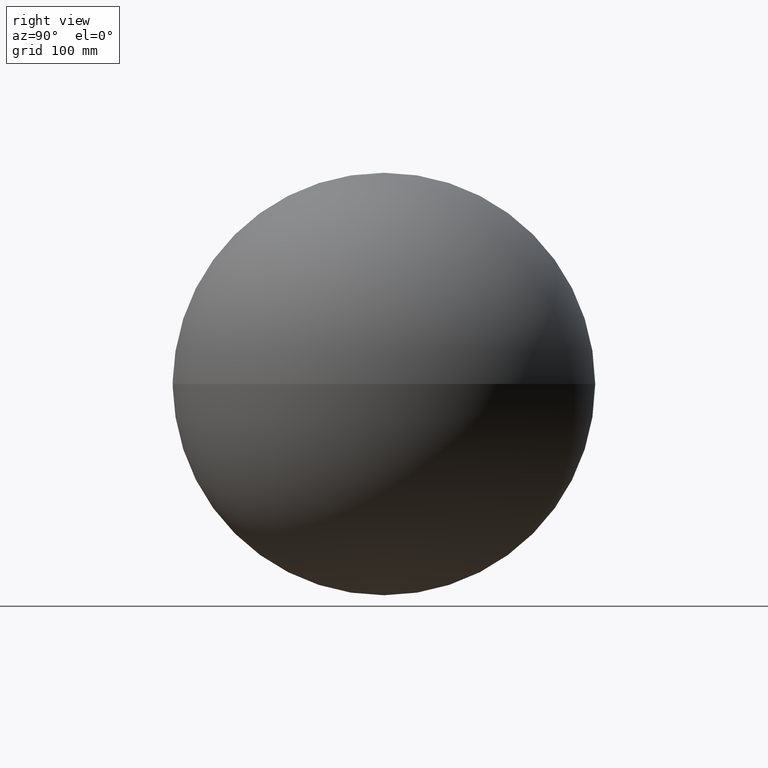
[diagram: clean part render]
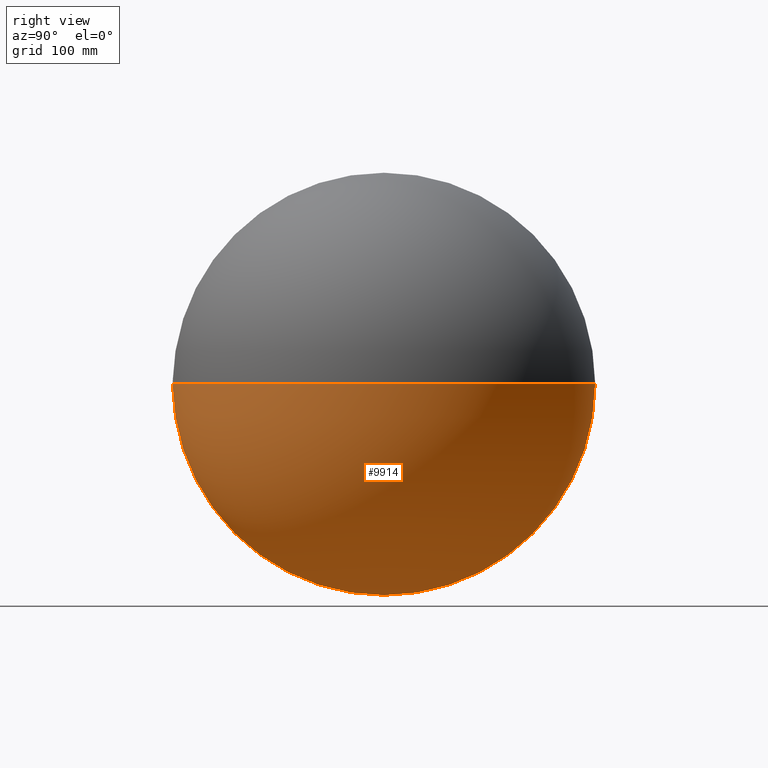
[diagram: same view with one face highlighted and labeled with its STEP entity id]
A machine part, right view. The second image highlights one B-rep face of the part: STEP entity #9914.
In plain terms, the highlighted spherical surface has radius 250 mm.
Its self-contained STEP definition (entity closure, byte-faithful):
#81 = CARTESIAN_POINT ( 'NONE',  ( 4.749420330849005700, -249.9548819417634900, -5.816362405979598300E-016 ) ) ;
#316 = VERTEX_POINT ( 'NONE', #81 ) ;
#535 = DIRECTION ( 'NONE',  ( -1.000000000000000000, 0.0000000000000000000, 0.0000000000000000000 ) ) ;
#569 = FACE_OUTER_BOUND ( 'NONE', #8869, .T. ) ;
#623 = CIRCLE ( 'NONE', #4184, 4.749420330849546600 ) ;
#674 = VERTEX_POINT ( 'NONE', #11937 ) ;
#937 = CIRCLE ( 'NONE', #5432, 4.749420330849546600 ) ;
#1436 = ORIENTED_EDGE ( 'NONE', *, *, #2093, .T. ) ;
#1744 = ORIENTED_EDGE ( 'NONE', *, *, #6635, .F. ) ;
#1823 = CIRCLE ( 'NONE', #8893, 250.0000000000000000 ) ;
#2093 = EDGE_CURVE ( 'NONE', #7185, #316, #10407, .T. ) ;
#2220 = DIRECTION ( 'NONE',  ( -1.000000000000000000, 0.0000000000000000000, 1.224646799147353200E-016 ) ) ;
#2819 = DIRECTION ( 'NONE',  ( -0.0000000000000000000, 1.000000000000000000, -0.0000000000000000000 ) ) ;
#3149 = SPHERICAL_SURFACE ( 'NONE', #10911, 250.0000000000000000 ) ;
#3477 = AXIS2_PLACEMENT_3D ( 'NONE', #6893, #4012, #2220 ) ;
#4012 = DIRECTION ( 'NONE',  ( -1.224646799147353200E-016, 0.0000000000000000000, -1.000000000000000000 ) ) ;
#4184 = AXIS2_PLACEMENT_3D ( 'NONE', #11251, #5631, #12178 ) ;
#4311 = EDGE_CURVE ( 'NONE', #316, #9102, #937, .T. ) ;
#4861 = CARTESIAN_POINT ( 'NONE',  ( 0.0000000000000000000, 0.0000000000000000000, 0.0000000000000000000 ) ) ;
#5432 = AXIS2_PLACEMENT_3D ( 'NONE', #8554, #2819, #9511 ) ;
#5464 = CARTESIAN_POINT ( 'NONE',  ( -1.530808498934191600E-014, 250.0000000000000000, 0.0000000000000000000 ) ) ;
#5631 = DIRECTION ( 'NONE',  ( -0.0000000000000000000, 1.000000000000000000, -0.0000000000000000000 ) ) ;
#5835 = DIRECTION ( 'NONE',  ( 1.000000000000000000, 0.0000000000000000000, 0.0000000000000000000 ) ) ;
#6635 = EDGE_CURVE ( 'NONE', #7185, #674, #1823, .T. ) ;
#6893 = CARTESIAN_POINT ( 'NONE',  ( 0.0000000000000000000, 0.0000000000000000000, 0.0000000000000000000 ) ) ;
#7049 = EDGE_CURVE ( 'NONE', #9102, #674, #623, .T. ) ;
#7185 = VERTEX_POINT ( 'NONE', #5464 ) ;
#8061 = CARTESIAN_POINT ( 'NONE',  ( 0.0000000000000000000, -249.9548819417634900, -4.749420330849547500 ) ) ;
#8208 = CARTESIAN_POINT ( 'NONE',  ( 0.0000000000000000000, 0.0000000000000000000, 0.0000000000000000000 ) ) ;
#8554 = CARTESIAN_POINT ( 'NONE',  ( 0.0000000000000000000, -249.9548819417634900, 0.0000000000000000000 ) ) ;
#8869 = EDGE_LOOP ( 'NONE', ( #1744, #1436, #11875, #9177 ) ) ;
#8893 = AXIS2_PLACEMENT_3D ( 'NONE', #4861, #11454, #5835 ) ;
#9102 = VERTEX_POINT ( 'NONE', #8061 ) ;
#9177 = ORIENTED_EDGE ( 'NONE', *, *, #7049, .T. ) ;
#9511 = DIRECTION ( 'NONE',  ( 0.0000000000000000000, 0.0000000000000000000, 1.000000000000000000 ) ) ;
#9914 = ADVANCED_FACE ( 'NONE', ( #569 ), #3149, .T. ) ;
#10407 = CIRCLE ( 'NONE', #3477, 250.0000000000000000 ) ;
#10911 = AXIS2_PLACEMENT_3D ( 'NONE', #8208, #11989, #535 ) ;
#11251 = CARTESIAN_POINT ( 'NONE',  ( 0.0000000000000000000, -249.9548819417634900, 0.0000000000000000000 ) ) ;
#11454 = DIRECTION ( 'NONE',  ( -0.0000000000000000000, 0.0000000000000000000, 1.000000000000000000 ) ) ;
#11875 = ORIENTED_EDGE ( 'NONE', *, *, #4311, .T. ) ;
#11937 = CARTESIAN_POINT ( 'NONE',  ( -4.749420330849005700, -249.9548819417634900, 0.0000000000000000000 ) ) ;
#11989 = DIRECTION ( 'NONE',  ( -0.0000000000000000000, -0.0000000000000000000, -1.000000000000000000 ) ) ;
#12178 = DIRECTION ( 'NONE',  ( 0.0000000000000000000, 0.0000000000000000000, 1.000000000000000000 ) ) ;